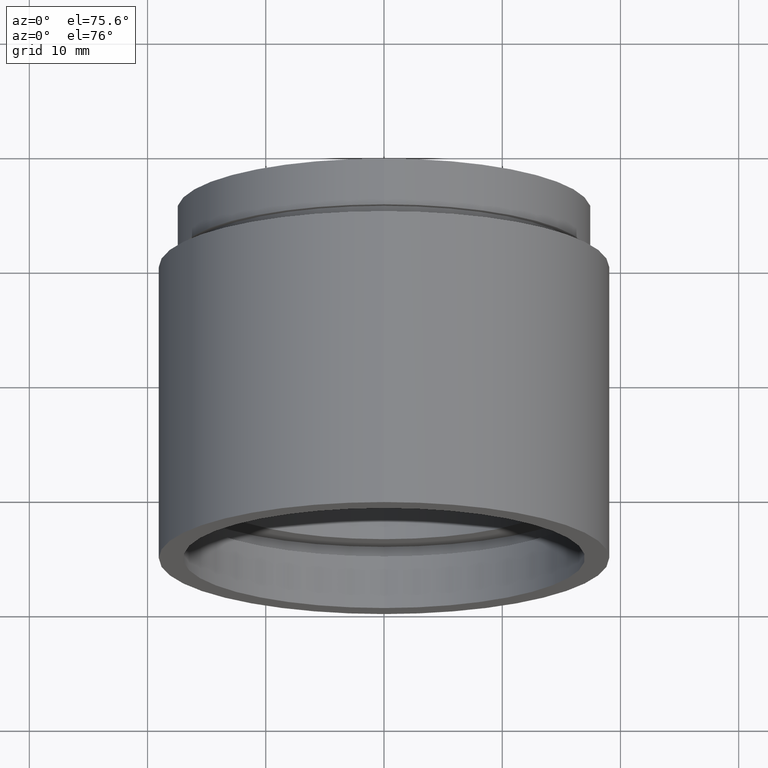
[diagram: clean part render]
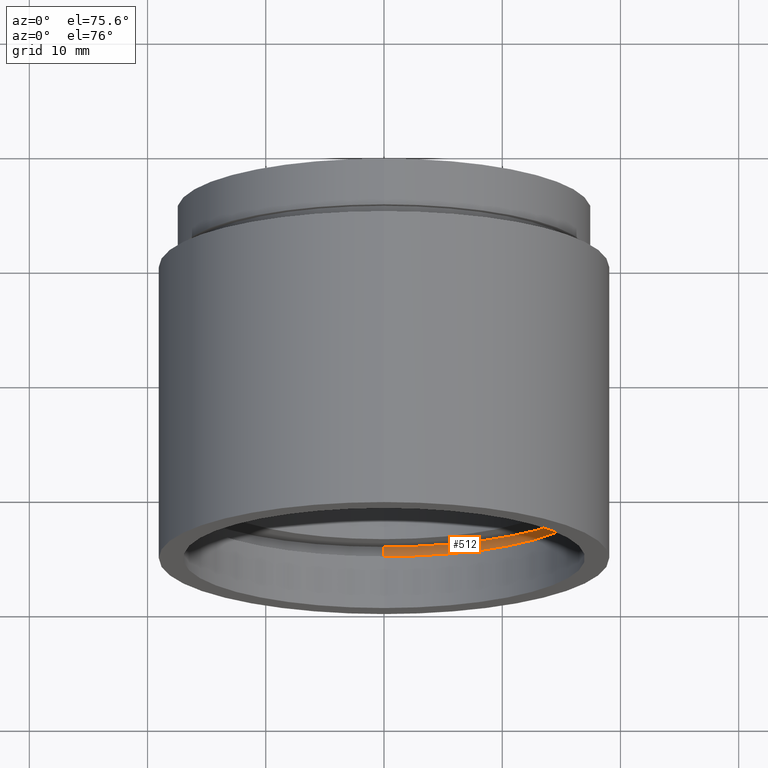
[diagram: same view with one face highlighted and labeled with its STEP entity id]
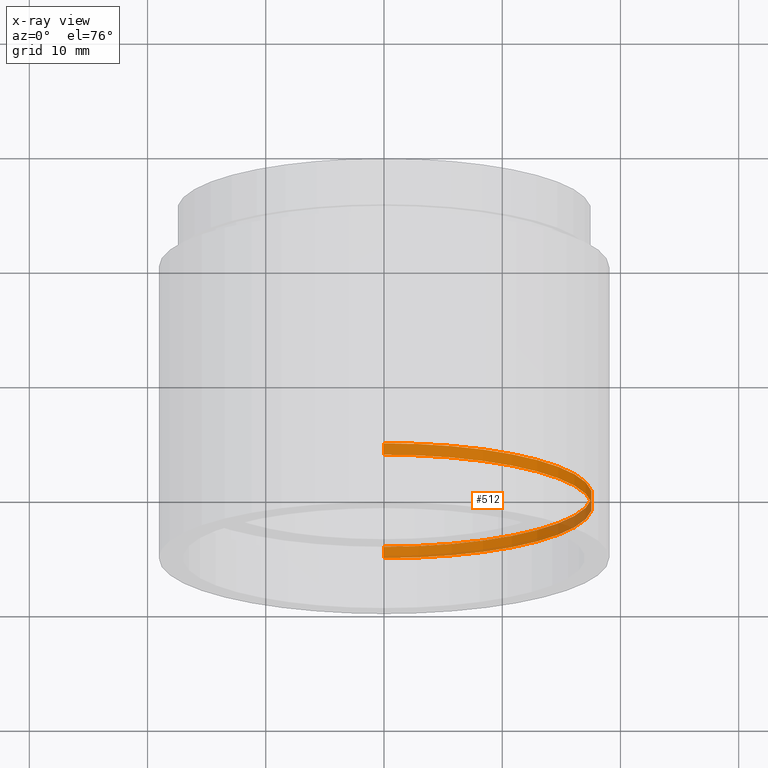
[diagram: x-ray of the same camera — body ghosted, the highlighted face saturated]
A machine part, auxiliary view. The second image highlights one B-rep face of the part: STEP entity #512.
The next image is the same camera in x-ray: the body ghosted, the highlighted face saturated — about 9% of this face is hidden behind the body in this view.
In plain terms, the highlighted cylindrical surface (partial cylindrical patch) has radius 17.6 mm, axis along (-0, 1, -0).
Its self-contained STEP definition (entity closure, byte-faithful):
#14 = EDGE_CURVE ( 'NONE', #580, #85, #590, .T. ) ;
#15 = CARTESIAN_POINT ( 'NONE',  ( 2.155378366499344400E-015, 5.499999999999976900, -17.60000000000002300 ) ) ;
#23 = DIRECTION ( 'NONE',  ( 0.0000000000000000000, 0.0000000000000000000, 1.000000000000000000 ) ) ;
#36 = EDGE_LOOP ( 'NONE', ( #237, #250, #204, #379 ) ) ;
#55 = AXIS2_PLACEMENT_3D ( 'NONE', #348, #438, #301 ) ;
#64 = VECTOR ( 'NONE', #146, 1000.000000000000000 ) ;
#73 = VECTOR ( 'NONE', #489, 1000.000000000000000 ) ;
#85 = VERTEX_POINT ( 'NONE', #15 ) ;
#146 = DIRECTION ( 'NONE',  ( -0.0000000000000000000, 1.000000000000000000, -0.0000000000000000000 ) ) ;
#152 = CIRCLE ( 'NONE', #542, 17.60000000000002300 ) ;
#179 = CARTESIAN_POINT ( 'NONE',  ( 0.0000000000000000000, 5.499999999999976900, 17.60000000000002300 ) ) ;
#185 = EDGE_CURVE ( 'NONE', #589, #85, #578, .T. ) ;
#204 = ORIENTED_EDGE ( 'NONE', *, *, #371, .T. ) ;
#207 = EDGE_CURVE ( 'NONE', #500, #580, #152, .T. ) ;
#223 = DIRECTION ( 'NONE',  ( -0.0000000000000000000, 1.000000000000000000, -0.0000000000000000000 ) ) ;
#226 = CARTESIAN_POINT ( 'NONE',  ( 0.0000000000000000000, 5.499999999999976900, 0.0000000000000000000 ) ) ;
#237 = ORIENTED_EDGE ( 'NONE', *, *, #14, .F. ) ;
#250 = ORIENTED_EDGE ( 'NONE', *, *, #207, .F. ) ;
#297 = CARTESIAN_POINT ( 'NONE',  ( 0.0000000000000000000, 161.3761669434274500, 17.60000000000002300 ) ) ;
#301 = DIRECTION ( 'NONE',  ( 0.0000000000000000000, 0.0000000000000000000, 1.000000000000000000 ) ) ;
#306 = CARTESIAN_POINT ( 'NONE',  ( 2.155378366499344400E-015, 161.3761669434274500, -17.60000000000002300 ) ) ;
#336 = CARTESIAN_POINT ( 'NONE',  ( 2.155378366499344400E-015, 4.499999999999976000, -17.60000000000002300 ) ) ;
#348 = CARTESIAN_POINT ( 'NONE',  ( 0.0000000000000000000, 161.3761669434274500, 0.0000000000000000000 ) ) ;
#369 = CYLINDRICAL_SURFACE ( 'NONE', #55, 17.60000000000002300 ) ;
#371 = EDGE_CURVE ( 'NONE', #500, #589, #456, .T. ) ;
#379 = ORIENTED_EDGE ( 'NONE', *, *, #185, .T. ) ;
#384 = AXIS2_PLACEMENT_3D ( 'NONE', #226, #421, #23 ) ;
#421 = DIRECTION ( 'NONE',  ( -0.0000000000000000000, 1.000000000000000000, -0.0000000000000000000 ) ) ;
#438 = DIRECTION ( 'NONE',  ( -0.0000000000000000000, 1.000000000000000000, -0.0000000000000000000 ) ) ;
#453 = CARTESIAN_POINT ( 'NONE',  ( 0.0000000000000000000, 4.499999999999976000, 17.60000000000002300 ) ) ;
#456 = LINE ( 'NONE', #297, #64 ) ;
#489 = DIRECTION ( 'NONE',  ( -0.0000000000000000000, 1.000000000000000000, -0.0000000000000000000 ) ) ;
#500 = VERTEX_POINT ( 'NONE', #453 ) ;
#506 = CARTESIAN_POINT ( 'NONE',  ( 0.0000000000000000000, 4.499999999999976000, 0.0000000000000000000 ) ) ;
#512 = ADVANCED_FACE ( 'NONE', ( #546 ), #369, .F. ) ;
#542 = AXIS2_PLACEMENT_3D ( 'NONE', #506, #223, #618 ) ;
#546 = FACE_OUTER_BOUND ( 'NONE', #36, .T. ) ;
#578 = CIRCLE ( 'NONE', #384, 17.60000000000002300 ) ;
#580 = VERTEX_POINT ( 'NONE', #336 ) ;
#589 = VERTEX_POINT ( 'NONE', #179 ) ;
#590 = LINE ( 'NONE', #306, #73 ) ;
#618 = DIRECTION ( 'NONE',  ( 0.0000000000000000000, 0.0000000000000000000, 1.000000000000000000 ) ) ;